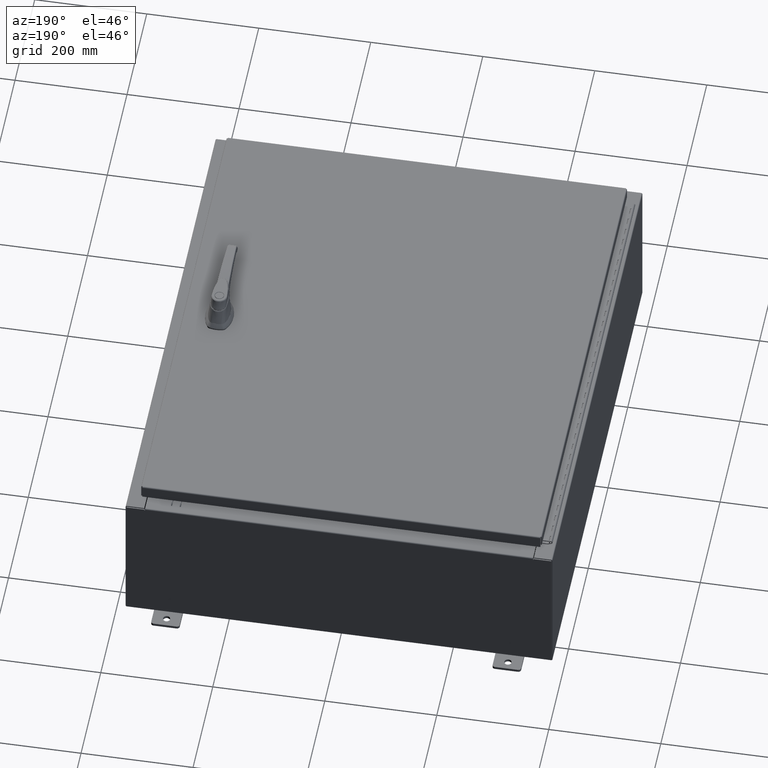
[diagram: clean part render]
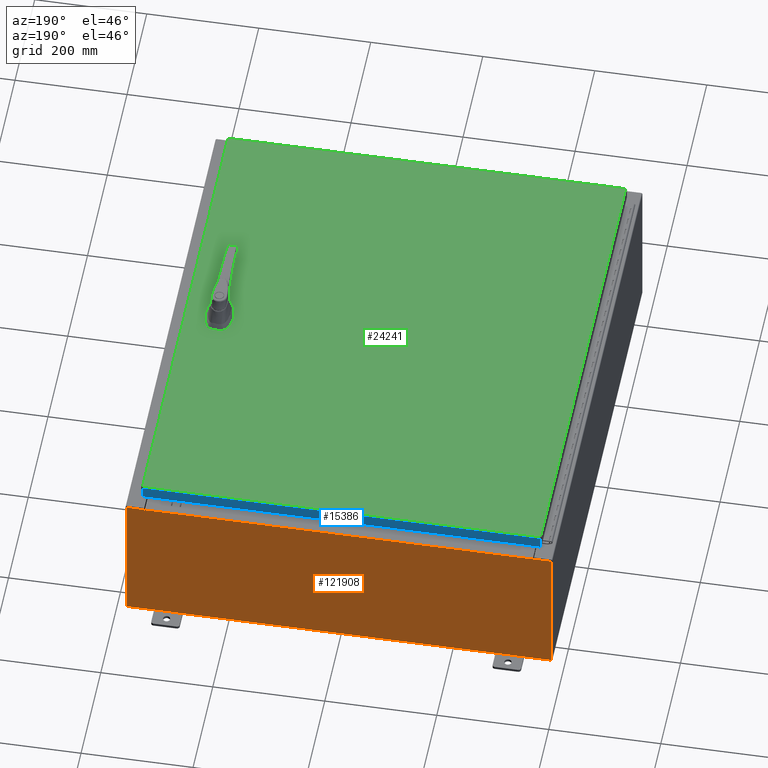
[diagram: same view with three faces highlighted in distinct colors, each labeled with its STEP entity id]
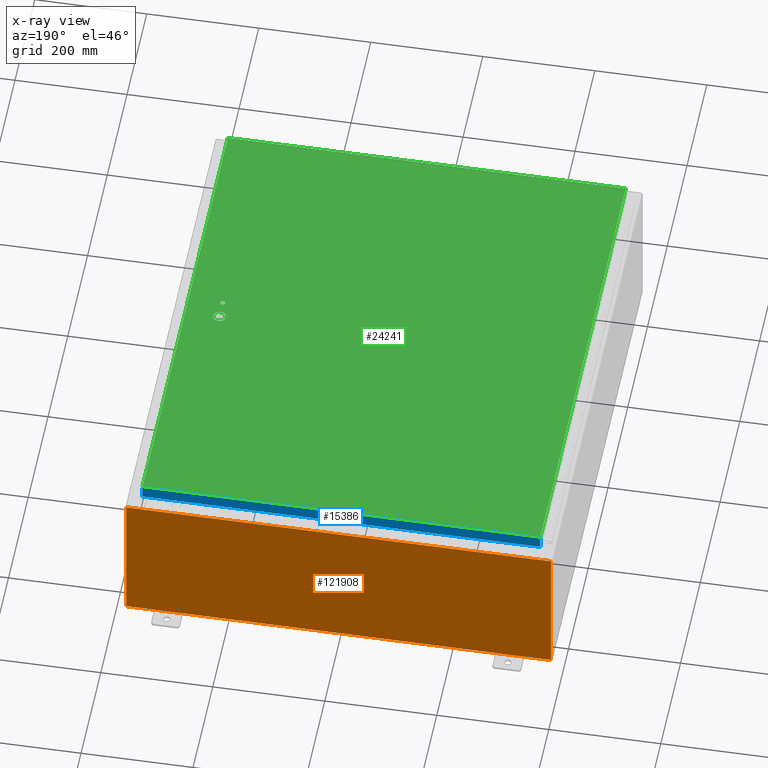
[diagram: x-ray of the same camera — body ghosted, the three highlighted faces saturated]
A machine part, auxiliary view with three faces highlighted in distinct colors.
The next image is the same camera in x-ray (body ghosted, the three faces saturated) — at least one of them is partly hidden behind the body in this view.
Their STEP definitions:

[orange] entity #121908 — the highlighted planar face has unit normal (0, -1, 0).
#145 = AXIS2_PLACEMENT_3D ( 'NONE', #75237, #18423, #84739 ) ;
#1754 = CARTESIAN_POINT ( 'NONE',  ( 13.63719999999999800, 0.0000000000000000000, 4.874950000000000100 ) ) ;
#2899 = EDGE_CURVE ( 'NONE', #12964, #7895, #5809, .T. ) ;
#3529 = CARTESIAN_POINT ( 'NONE',  ( 13.67454999999999800, 0.0000000000000000000, 4.874950000000000100 ) ) ;
#5809 = LINE ( 'NONE', #23535, #33932 ) ;
#7895 = VERTEX_POINT ( 'NONE', #102357 ) ;
#8056 = CARTESIAN_POINT ( 'NONE',  ( -13.65587500000000000, 0.0000000000000000000, 4.874950000000000100 ) ) ;
#9061 = EDGE_CURVE ( 'NONE', #52164, #45915, #66389, .T. ) ;
#12059 = CARTESIAN_POINT ( 'NONE',  ( 14.92529999999999800, 0.0000000000000000000, 4.925300000000000000 ) ) ;
#12964 = VERTEX_POINT ( 'NONE', #120983 ) ;
#17562 = DIRECTION ( 'NONE',  ( 0.0000000000000000000, 0.0000000000000000000, -1.000000000000000000 ) ) ;
#18423 = DIRECTION ( 'NONE',  ( 0.0000000000000000000, -1.000000000000000000, 0.0000000000000000000 ) ) ;
#18701 = VERTEX_POINT ( 'NONE', #3529 ) ;
#18991 = CARTESIAN_POINT ( 'NONE',  ( -14.92530000000000200, 0.0000000000000000000, 4.925300000000000000 ) ) ;
#19793 = DIRECTION ( 'NONE',  ( -1.000000000000000000, -0.0000000000000000000, -0.0000000000000000000 ) ) ;
#21705 = DIRECTION ( 'NONE',  ( -0.0000000000000000000, 1.000000000000000000, -0.0000000000000000000 ) ) ;
#23535 = CARTESIAN_POINT ( 'NONE',  ( -13.63720000000000000, -0.0000000000000000000, 0.0000000000000000000 ) ) ;
#24063 = DIRECTION ( 'NONE',  ( 0.0000000000000000000, 0.0000000000000000000, -1.000000000000000000 ) ) ;
#25064 = ORIENTED_EDGE ( 'NONE', *, *, #75148, .F. ) ;
#27351 = EDGE_CURVE ( 'NONE', #115807, #104581, #46039, .T. ) ;
#27527 = DIRECTION ( 'NONE',  ( 0.0000000000000000000, 0.0000000000000000000, -1.000000000000000000 ) ) ;
#27940 = CARTESIAN_POINT ( 'NONE',  ( 14.92529999999999800, 0.0000000000000000000, 4.925300000000000000 ) ) ;
#28255 = DIRECTION ( 'NONE',  ( 1.000000000000000000, 0.0000000000000000000, 0.0000000000000000000 ) ) ;
#28277 = ORIENTED_EDGE ( 'NONE', *, *, #82567, .F. ) ;
#30287 = CARTESIAN_POINT ( 'NONE',  ( 13.67455000000000000, 0.0000000000000000000, 4.925300000000000000 ) ) ;
#30354 = VECTOR ( 'NONE', #85294, 39.37007874015748100 ) ;
#30510 = CARTESIAN_POINT ( 'NONE',  ( 13.63719999999999800, 0.0000000000000000000, 4.912300000000000100 ) ) ;
#31662 = LINE ( 'NONE', #39932, #79113 ) ;
#33084 = VERTEX_POINT ( 'NONE', #12059 ) ;
#33932 = VECTOR ( 'NONE', #24063, 39.37007874015748100 ) ;
#34319 = LINE ( 'NONE', #43307, #56610 ) ;
#35712 = EDGE_CURVE ( 'NONE', #18701, #115807, #54965, .T. ) ;
#38281 = DIRECTION ( 'NONE',  ( -4.340572780400004900E-014, 0.0000000000000000000, -1.000000000000000000 ) ) ;
#39932 = CARTESIAN_POINT ( 'NONE',  ( -14.92530000000000200, 0.0000000000000000000, 4.925300000000000000 ) ) ;
#40687 = VECTOR ( 'NONE', #28255, 39.37007874015748100 ) ;
#43307 = CARTESIAN_POINT ( 'NONE',  ( -13.67455000000000000, -0.0000000000000000000, 0.0000000000000000000 ) ) ;
#44398 = DIRECTION ( 'NONE',  ( 0.0000000000000000000, 0.0000000000000000000, 1.000000000000000000 ) ) ;
#44777 = VERTEX_POINT ( 'NONE', #71262 ) ;
#45915 = VERTEX_POINT ( 'NONE', #52877 ) ;
#46039 = LINE ( 'NONE', #91668, #68334 ) ;
#47539 = ORIENTED_EDGE ( 'NONE', *, *, #27351, .F. ) ;
#47651 = CIRCLE ( 'NONE', #59007, 0.01867499999999949400 ) ;
#49864 = DIRECTION ( 'NONE',  ( -0.0000000000000000000, -0.0000000000000000000, 1.000000000000000000 ) ) ;
#52164 = VERTEX_POINT ( 'NONE', #53901 ) ;
#52877 = CARTESIAN_POINT ( 'NONE',  ( -14.92530000000000200, 0.0000000000000000000, -4.925300000000000000 ) ) ;
#53901 = CARTESIAN_POINT ( 'NONE',  ( 14.92529999999999800, 0.0000000000000000000, -4.925300000000000000 ) ) ;
#54241 = EDGE_CURVE ( 'NONE', #111426, #33084, #116456, .T. ) ;
#54965 = CIRCLE ( 'NONE', #61125, 0.01867499999999949400 ) ;
#56610 = VECTOR ( 'NONE', #100091, 39.37007874015748100 ) ;
#58313 = ORIENTED_EDGE ( 'NONE', *, *, #9061, .T. ) ;
#59007 = AXIS2_PLACEMENT_3D ( 'NONE', #8056, #74355, #17562 ) ;
#60347 = VECTOR ( 'NONE', #27527, 39.37007874015748100 ) ;
#61125 = AXIS2_PLACEMENT_3D ( 'NONE', #78509, #21705, #88056 ) ;
#63314 = FACE_OUTER_BOUND ( 'NONE', #87404, .T. ) ;
#66098 = LINE ( 'NONE', #99042, #113639 ) ;
#66389 = LINE ( 'NONE', #85681, #113930 ) ;
#68334 = VECTOR ( 'NONE', #44398, 39.37007874015748100 ) ;
#70575 = VECTOR ( 'NONE', #38281, 39.37007874015748100 ) ;
#71262 = CARTESIAN_POINT ( 'NONE',  ( -14.92530000000000200, 0.0000000000000000000, 4.925300000000000000 ) ) ;
#72314 = VERTEX_POINT ( 'NONE', #113881 ) ;
#74355 = DIRECTION ( 'NONE',  ( -0.0000000000000000000, 1.000000000000000000, -0.0000000000000000000 ) ) ;
#74963 = EDGE_CURVE ( 'NONE', #72314, #101968, #34319, .T. ) ;
#75148 = EDGE_CURVE ( 'NONE', #7895, #72314, #47651, .T. ) ;
#75237 = CARTESIAN_POINT ( 'NONE',  ( 0.0000000000000000000, 0.0000000000000000000, 0.0000000000000000000 ) ) ;
#78509 = CARTESIAN_POINT ( 'NONE',  ( 13.65587499999999800, 0.0000000000000000000, 4.874950000000000100 ) ) ;
#79113 = VECTOR ( 'NONE', #49864, 39.37007874015748100 ) ;
#82567 = EDGE_CURVE ( 'NONE', #111426, #18701, #95767, .T. ) ;
#83733 = EDGE_CURVE ( 'NONE', #44777, #101968, #100044, .T. ) ;
#84320 = PLANE ( 'NONE',  #145 ) ;
#84739 = DIRECTION ( 'NONE',  ( 0.0000000000000000000, -0.0000000000000000000, -1.000000000000000000 ) ) ;
#85294 = DIRECTION ( 'NONE',  ( 1.000000000000000000, 0.0000000000000000000, 0.0000000000000000000 ) ) ;
#85536 = CARTESIAN_POINT ( 'NONE',  ( 13.67454999999978500, -0.0000000000000000000, -5.935537951421795000E-013 ) ) ;
#85681 = CARTESIAN_POINT ( 'NONE',  ( -14.92530000000000200, 0.0000000000000000000, -4.925300000000000000 ) ) ;
#87404 = EDGE_LOOP ( 'NONE', ( #90428, #25064, #109664, #104412, #47539, #97866, #28277, #87831, #121111, #58313, #114656, #100769 ) ) ;
#87831 = ORIENTED_EDGE ( 'NONE', *, *, #54241, .T. ) ;
#88056 = DIRECTION ( 'NONE',  ( 0.0000000000000000000, 0.0000000000000000000, -1.000000000000000000 ) ) ;
#88555 = LINE ( 'NONE', #27940, #60347 ) ;
#90428 = ORIENTED_EDGE ( 'NONE', *, *, #74963, .F. ) ;
#91410 = CARTESIAN_POINT ( 'NONE',  ( -13.67455000000000000, 0.0000000000000000000, 4.925300000000000000 ) ) ;
#91643 = EDGE_CURVE ( 'NONE', #45915, #44777, #31662, .T. ) ;
#91668 = CARTESIAN_POINT ( 'NONE',  ( 13.63719999999999800, 0.0000000000000000000, 0.0000000000000000000 ) ) ;
#93344 = CARTESIAN_POINT ( 'NONE',  ( -14.92530000000000200, 0.0000000000000000000, 4.925300000000000000 ) ) ;
#95767 = LINE ( 'NONE', #85536, #70575 ) ;
#97866 = ORIENTED_EDGE ( 'NONE', *, *, #35712, .F. ) ;
#99042 = CARTESIAN_POINT ( 'NONE',  ( -13.63720000000000400, -7.171100983368691200E-016, 4.912300000000000100 ) ) ;
#100044 = LINE ( 'NONE', #18991, #30354 ) ;
#100091 = DIRECTION ( 'NONE',  ( 0.0000000000000000000, 0.0000000000000000000, 1.000000000000000000 ) ) ;
#100769 = ORIENTED_EDGE ( 'NONE', *, *, #83733, .T. ) ;
#101262 = EDGE_CURVE ( 'NONE', #12964, #104581, #66098, .T. ) ;
#101968 = VERTEX_POINT ( 'NONE', #91410 ) ;
#102357 = CARTESIAN_POINT ( 'NONE',  ( -13.63720000000000000, -0.0000000000000000000, 4.874950000000000100 ) ) ;
#104412 = ORIENTED_EDGE ( 'NONE', *, *, #101262, .T. ) ;
#104581 = VERTEX_POINT ( 'NONE', #30510 ) ;
#108676 = DIRECTION ( 'NONE',  ( 1.000000000000000000, 0.0000000000000000000, 0.0000000000000000000 ) ) ;
#109664 = ORIENTED_EDGE ( 'NONE', *, *, #2899, .F. ) ;
#111426 = VERTEX_POINT ( 'NONE', #30287 ) ;
#113639 = VECTOR ( 'NONE', #108676, 39.37007874015748100 ) ;
#113881 = CARTESIAN_POINT ( 'NONE',  ( -13.67455000000000000, 0.0000000000000000000, 4.874950000000000100 ) ) ;
#113930 = VECTOR ( 'NONE', #19793, 39.37007874015748100 ) ;
#114656 = ORIENTED_EDGE ( 'NONE', *, *, #91643, .T. ) ;
#115807 = VERTEX_POINT ( 'NONE', #1754 ) ;
#116456 = LINE ( 'NONE', #93344, #40687 ) ;
#120983 = CARTESIAN_POINT ( 'NONE',  ( -13.63720000000000000, -7.171100983368691200E-016, 4.912300000000000100 ) ) ;
#121111 = ORIENTED_EDGE ( 'NONE', *, *, #121926, .T. ) ;
#121908 = ADVANCED_FACE ( 'NONE', ( #63314 ), #84320, .F. ) ;
#121926 = EDGE_CURVE ( 'NONE', #33084, #52164, #88555, .T. ) ;

[blue] entity #15386 — the highlighted planar face has unit normal (0, -1, -0).
#3846 = LINE ( 'NONE', #109524, #82390 ) ;
#6329 = VECTOR ( 'NONE', #54759, 39.37007874015748100 ) ;
#6763 = VERTEX_POINT ( 'NONE', #83907 ) ;
#14025 = EDGE_CURVE ( 'NONE', #61152, #116522, #78989, .T. ) ;
#15386 = ADVANCED_FACE ( 'NONE', ( #65452 ), #62335, .F. ) ;
#19893 = ORIENTED_EDGE ( 'NONE', *, *, #61180, .F. ) ;
#24586 = DIRECTION ( 'NONE',  ( 3.194218701939437300E-031, -1.000000000000000000, -2.532419924601855800E-015 ) ) ;
#30635 = CARTESIAN_POINT ( 'NONE',  ( -14.07800000000000700, 17.09400000000000100, -0.08770000000000008300 ) ) ;
#40280 = CARTESIAN_POINT ( 'NONE',  ( 13.98915786437626500, 17.09400000000000100, -0.08770000000000226200 ) ) ;
#41484 = EDGE_CURVE ( 'NONE', #52463, #116522, #3846, .T. ) ;
#52463 = VERTEX_POINT ( 'NONE', #122833 ) ;
#54759 = DIRECTION ( 'NONE',  ( 0.0000000000000000000, 2.532419924601855800E-015, -1.000000000000000000 ) ) ;
#58951 = DIRECTION ( 'NONE',  ( -0.0000000000000000000, 2.532419924601855800E-015, -1.000000000000000000 ) ) ;
#61152 = VERTEX_POINT ( 'NONE', #40280 ) ;
#61180 = EDGE_CURVE ( 'NONE', #6763, #52463, #79663, .T. ) ;
#62279 = AXIS2_PLACEMENT_3D ( 'NONE', #81384, #24586, #90918 ) ;
#62335 = PLANE ( 'NONE',  #62279 ) ;
#65452 = FACE_OUTER_BOUND ( 'NONE', #122857, .T. ) ;
#66851 = LINE ( 'NONE', #30635, #117406 ) ;
#75983 = EDGE_CURVE ( 'NONE', #61152, #6763, #66851, .T. ) ;
#76679 = VECTOR ( 'NONE', #58951, 39.37007874015748100 ) ;
#78989 = LINE ( 'NONE', #111646, #6329 ) ;
#79663 = LINE ( 'NONE', #106679, #76679 ) ;
#81202 = CARTESIAN_POINT ( 'NONE',  ( 13.98915786437626500, 17.09400000000000500, -0.9376999999999997600 ) ) ;
#81384 = CARTESIAN_POINT ( 'NONE',  ( -5.460197449095275600E-030, 17.09400000000000100, 4.354999984715570800E-014 ) ) ;
#82390 = VECTOR ( 'NONE', #99876, 39.37007874015748100 ) ;
#83907 = CARTESIAN_POINT ( 'NONE',  ( -13.98915786437627800, 17.09400000000000100, -0.08770000000000118000 ) ) ;
#90918 = DIRECTION ( 'NONE',  ( 0.0000000000000000000, 2.532419924601855800E-015, -1.000000000000000000 ) ) ;
#96943 = DIRECTION ( 'NONE',  ( -1.000000000000000000, -5.159891749286783700E-031, 7.762034361881697200E-017 ) ) ;
#99876 = DIRECTION ( 'NONE',  ( 1.000000000000000000, -0.0000000000000000000, 1.261330583805775800E-016 ) ) ;
#103964 = ORIENTED_EDGE ( 'NONE', *, *, #41484, .F. ) ;
#106679 = CARTESIAN_POINT ( 'NONE',  ( -13.98915786437627600, 17.09400000000000100, -0.07469999999999980800 ) ) ;
#109524 = CARTESIAN_POINT ( 'NONE',  ( -14.07800000000000700, 17.09400000000000500, -0.9377000000000033100 ) ) ;
#111646 = CARTESIAN_POINT ( 'NONE',  ( 13.98915786437626400, 17.09400000000000100, 4.354999984715570800E-014 ) ) ;
#115570 = ORIENTED_EDGE ( 'NONE', *, *, #14025, .T. ) ;
#116522 = VERTEX_POINT ( 'NONE', #81202 ) ;
#117406 = VECTOR ( 'NONE', #96943, 39.37007874015748100 ) ;
#121560 = ORIENTED_EDGE ( 'NONE', *, *, #75983, .F. ) ;
#122833 = CARTESIAN_POINT ( 'NONE',  ( -13.98915786437627600, 17.09400000000000500, -0.9377000000000033100 ) ) ;
#122857 = EDGE_LOOP ( 'NONE', ( #121560, #115570, #103964, #19893 ) ) ;

[green] entity #24241 — the highlighted planar face has unit normal (0, 0, -1).
#1963 = CARTESIAN_POINT ( 'NONE',  ( 11.77822737075630300, -0.4029999999999252000, 0.0000000000000000000 ) ) ;
#2168 = FACE_BOUND ( 'NONE', #117686, .T. ) ;
#2959 = DIRECTION ( 'NONE',  ( -1.000000000000000000, 0.0000000000000000000, 0.0000000000000000000 ) ) ;
#4135 = VERTEX_POINT ( 'NONE', #106847 ) ;
#5146 = EDGE_CURVE ( 'NONE', #29245, #36335, #6983, .T. ) ;
#5564 = CARTESIAN_POINT ( 'NONE',  ( 11.98099999999992200, -0.2002273707563079800, 0.0000000000000000000 ) ) ;
#5871 = VERTEX_POINT ( 'NONE', #85409 ) ;
#6800 = CARTESIAN_POINT ( 'NONE',  ( 11.40649999999999200, -1.338000000000000100, 0.0000000000000000000 ) ) ;
#6916 = ORIENTED_EDGE ( 'NONE', *, *, #83180, .F. ) ;
#6983 = LINE ( 'NONE', #10139, #57416 ) ;
#7074 = CARTESIAN_POINT ( 'NONE',  ( 11.17500000000006600, 0.0000000000000000000, 0.0000000000000000000 ) ) ;
#7649 = CARTESIAN_POINT ( 'NONE',  ( 11.37777262924368300, -0.4029999999999252000, 0.0000000000000000000 ) ) ;
#8170 = CARTESIAN_POINT ( 'NONE',  ( 0.0000000000000000000, -0.4029999999999252000, 0.0000000000000000000 ) ) ;
#8811 = CARTESIAN_POINT ( 'NONE',  ( 11.57799999999999400, -1.338000000000000100, 0.0000000000000000000 ) ) ;
#9434 = AXIS2_PLACEMENT_3D ( 'NONE', #30749, #97063, #40296 ) ;
#9483 = ORIENTED_EDGE ( 'NONE', *, *, #70319, .T. ) ;
#10139 = CARTESIAN_POINT ( 'NONE',  ( -13.99030000000000700, -17.00630000000000000, -2.048885995248197400E-016 ) ) ;
#11304 = VERTEX_POINT ( 'NONE', #91041 ) ;
#11601 = PLANE ( 'NONE',  #96946 ) ;
#13015 = VERTEX_POINT ( 'NONE', #66150 ) ;
#14656 = VECTOR ( 'NONE', #80644, 39.37007874015748100 ) ;
#15220 = DIRECTION ( 'NONE',  ( 0.0000000000000000000, -1.000000000000000000, 0.0000000000000000000 ) ) ;
#15403 = AXIS2_PLACEMENT_3D ( 'NONE', #8811, #75127, #18322 ) ;
#15628 = EDGE_CURVE ( 'NONE', #98692, #70103, #75809, .T. ) ;
#17565 = LINE ( 'NONE', #72018, #65061 ) ;
#17680 = DIRECTION ( 'NONE',  ( 1.000000000000000000, 0.0000000000000000000, 0.0000000000000000000 ) ) ;
#18322 = DIRECTION ( 'NONE',  ( 1.000000000000000000, 0.0000000000000000000, 0.0000000000000000000 ) ) ;
#20720 = ORIENTED_EDGE ( 'NONE', *, *, #97470, .F. ) ;
#21291 = EDGE_CURVE ( 'NONE', #5871, #13015, #103205, .T. ) ;
#22138 = AXIS2_PLACEMENT_3D ( 'NONE', #27898, #94210, #37423 ) ;
#22228 = VERTEX_POINT ( 'NONE', #86619 ) ;
#22879 = DIRECTION ( 'NONE',  ( -0.0000000000000000000, 0.0000000000000000000, 1.000000000000000000 ) ) ;
#23842 = LINE ( 'NONE', #50910, #118890 ) ;
#24241 = ADVANCED_FACE ( 'NONE', ( #33269, #27305, #2168 ), #11601, .F. ) ;
#25511 = ORIENTED_EDGE ( 'NONE', *, *, #96067, .T. ) ;
#26445 = DIRECTION ( 'NONE',  ( -0.0000000000000000000, 0.0000000000000000000, 1.000000000000000000 ) ) ;
#26448 = ORIENTED_EDGE ( 'NONE', *, *, #39125, .F. ) ;
#27236 = CIRCLE ( 'NONE', #39520, 0.1715000000000011500 ) ;
#27305 = FACE_OUTER_BOUND ( 'NONE', #85363, .T. ) ;
#27536 = ORIENTED_EDGE ( 'NONE', *, *, #102780, .T. ) ;
#27898 = CARTESIAN_POINT ( 'NONE',  ( 11.57799999999999400, 0.0000000000000000000, 0.0000000000000000000 ) ) ;
#28960 = CIRCLE ( 'NONE', #53476, 0.4499999999999168000 ) ;
#29245 = VERTEX_POINT ( 'NONE', #50288 ) ;
#30505 = CARTESIAN_POINT ( 'NONE',  ( 13.99029999999999200, 17.00630000000000300, -1.297627796990525000E-015 ) ) ;
#30749 = CARTESIAN_POINT ( 'NONE',  ( 11.57799999999999400, 0.0000000000000000000, 0.0000000000000000000 ) ) ;
#32533 = EDGE_CURVE ( 'NONE', #70103, #98692, #27236, .T. ) ;
#33269 = FACE_BOUND ( 'NONE', #61957, .T. ) ;
#34667 = LINE ( 'NONE', #8170, #50988 ) ;
#34890 = CARTESIAN_POINT ( 'NONE',  ( 11.57799999999999400, 0.0000000000000000000, 0.0000000000000000000 ) ) ;
#35483 = ORIENTED_EDGE ( 'NONE', *, *, #53196, .F. ) ;
#36335 = VERTEX_POINT ( 'NONE', #110729 ) ;
#36847 = DIRECTION ( 'NONE',  ( 0.0000000000000000000, -1.000000000000000000, 0.0000000000000000000 ) ) ;
#37423 = DIRECTION ( 'NONE',  ( 1.000000000000000000, 0.0000000000000000000, 0.0000000000000000000 ) ) ;
#39125 = EDGE_CURVE ( 'NONE', #69137, #5871, #61977, .T. ) ;
#39520 = AXIS2_PLACEMENT_3D ( 'NONE', #79694, #22879, #89228 ) ;
#40296 = DIRECTION ( 'NONE',  ( 1.000000000000000000, 0.0000000000000000000, 0.0000000000000000000 ) ) ;
#42049 = ORIENTED_EDGE ( 'NONE', *, *, #5146, .T. ) ;
#42512 = CARTESIAN_POINT ( 'NONE',  ( 13.99029999999999200, 17.00630000000000300, -1.297627796990525000E-015 ) ) ;
#42687 = ORIENTED_EDGE ( 'NONE', *, *, #55232, .F. ) ;
#44441 = DIRECTION ( 'NONE',  ( 1.000000000000000000, 0.0000000000000000000, 0.0000000000000000000 ) ) ;
#45882 = AXIS2_PLACEMENT_3D ( 'NONE', #34890, #101235, #44441 ) ;
#49702 = DIRECTION ( 'NONE',  ( 0.0000000000000000000, 0.0000000000000000000, -1.000000000000000000 ) ) ;
#50159 = CARTESIAN_POINT ( 'NONE',  ( 0.0000000000000000000, 0.4029999999999252000, 0.0000000000000000000 ) ) ;
#50288 = CARTESIAN_POINT ( 'NONE',  ( -13.99030000000000700, -17.00630000000000000, -2.048885995248197400E-016 ) ) ;
#50481 = CARTESIAN_POINT ( 'NONE',  ( 11.74949999999999400, -1.338000000000000100, 0.0000000000000000000 ) ) ;
#50910 = CARTESIAN_POINT ( 'NONE',  ( 11.98099999999992000, 6.538620706741751200E-014, 0.0000000000000000000 ) ) ;
#50988 = VECTOR ( 'NONE', #17680, 39.37007874015748100 ) ;
#53196 = EDGE_CURVE ( 'NONE', #117408, #73981, #34667, .T. ) ;
#53476 = AXIS2_PLACEMENT_3D ( 'NONE', #83222, #26445, #92767 ) ;
#55232 = EDGE_CURVE ( 'NONE', #73981, #86839, #28960, .T. ) ;
#55477 = VECTOR ( 'NONE', #98432, 39.37007874015748100 ) ;
#57416 = VECTOR ( 'NONE', #66940, 39.37007874015748100 ) ;
#60474 = DIRECTION ( 'NONE',  ( 5.457491617345625800E-015, -1.000000000000000000, 0.0000000000000000000 ) ) ;
#60928 = ORIENTED_EDGE ( 'NONE', *, *, #32533, .F. ) ;
#61957 = EDGE_LOOP ( 'NONE', ( #60928, #88064 ) ) ;
#61977 = LINE ( 'NONE', #50159, #112493 ) ;
#62494 = VERTEX_POINT ( 'NONE', #30505 ) ;
#64547 = LINE ( 'NONE', #7074, #89764 ) ;
#65061 = VECTOR ( 'NONE', #15220, 39.37007874015748100 ) ;
#66150 = CARTESIAN_POINT ( 'NONE',  ( 11.17500000000006600, 0.2002273707563079800, 0.0000000000000000000 ) ) ;
#66940 = DIRECTION ( 'NONE',  ( 1.000000000000000000, -0.0000000000000000000, -0.0000000000000000000 ) ) ;
#69137 = VERTEX_POINT ( 'NONE', #117638 ) ;
#70103 = VERTEX_POINT ( 'NONE', #50481 ) ;
#70319 = EDGE_CURVE ( 'NONE', #22228, #29245, #17565, .T. ) ;
#72018 = CARTESIAN_POINT ( 'NONE',  ( -13.99030000000000700, 17.00630000000000000, -2.048885995248197400E-016 ) ) ;
#72210 = ORIENTED_EDGE ( 'NONE', *, *, #79355, .T. ) ;
#73981 = VERTEX_POINT ( 'NONE', #1963 ) ;
#75127 = DIRECTION ( 'NONE',  ( -0.0000000000000000000, 0.0000000000000000000, 1.000000000000000000 ) ) ;
#75809 = CIRCLE ( 'NONE', #15403, 0.1715000000000011500 ) ;
#79355 = EDGE_CURVE ( 'NONE', #62494, #22228, #112635, .T. ) ;
#79694 = CARTESIAN_POINT ( 'NONE',  ( 11.57799999999999400, -1.338000000000000100, 0.0000000000000000000 ) ) ;
#80644 = DIRECTION ( 'NONE',  ( -1.000000000000000000, -0.0000000000000000000, -0.0000000000000000000 ) ) ;
#83180 = EDGE_CURVE ( 'NONE', #11304, #117408, #110613, .T. ) ;
#83222 = CARTESIAN_POINT ( 'NONE',  ( 11.57799999999999400, 0.0000000000000000000, 0.0000000000000000000 ) ) ;
#85363 = EDGE_LOOP ( 'NONE', ( #42049, #27536, #72210, #9483 ) ) ;
#85409 = CARTESIAN_POINT ( 'NONE',  ( 11.37777262924368300, 0.4029999999999252000, 0.0000000000000000000 ) ) ;
#86619 = CARTESIAN_POINT ( 'NONE',  ( -13.99030000000000700, 17.00630000000000000, -2.048885995248197400E-016 ) ) ;
#86839 = VERTEX_POINT ( 'NONE', #5564 ) ;
#87438 = CARTESIAN_POINT ( 'NONE',  ( 0.0000000000000000000, 0.0000000000000000000, 0.0000000000000000000 ) ) ;
#88064 = ORIENTED_EDGE ( 'NONE', *, *, #15628, .F. ) ;
#89228 = DIRECTION ( 'NONE',  ( 1.000000000000000000, 0.0000000000000000000, 0.0000000000000000000 ) ) ;
#89764 = VECTOR ( 'NONE', #36847, 39.37007874015748100 ) ;
#91041 = CARTESIAN_POINT ( 'NONE',  ( 11.17500000000006600, -0.2002273707563079800, 0.0000000000000000000 ) ) ;
#92767 = DIRECTION ( 'NONE',  ( 1.000000000000000000, 0.0000000000000000000, 0.0000000000000000000 ) ) ;
#94210 = DIRECTION ( 'NONE',  ( -0.0000000000000000000, 0.0000000000000000000, 1.000000000000000000 ) ) ;
#96067 = EDGE_CURVE ( 'NONE', #4135, #86839, #23842, .T. ) ;
#96946 = AXIS2_PLACEMENT_3D ( 'NONE', #87438, #49702, #116162 ) ;
#97063 = DIRECTION ( 'NONE',  ( -0.0000000000000000000, 0.0000000000000000000, 1.000000000000000000 ) ) ;
#97470 = EDGE_CURVE ( 'NONE', #4135, #69137, #121594, .T. ) ;
#98432 = DIRECTION ( 'NONE',  ( 0.0000000000000000000, 1.000000000000000000, 0.0000000000000000000 ) ) ;
#98692 = VERTEX_POINT ( 'NONE', #6800 ) ;
#101235 = DIRECTION ( 'NONE',  ( -0.0000000000000000000, 0.0000000000000000000, 1.000000000000000000 ) ) ;
#102780 = EDGE_CURVE ( 'NONE', #36335, #62494, #102949, .T. ) ;
#102949 = LINE ( 'NONE', #117645, #55477 ) ;
#103205 = CIRCLE ( 'NONE', #22138, 0.4499999999999168000 ) ;
#106815 = ORIENTED_EDGE ( 'NONE', *, *, #21291, .F. ) ;
#106847 = CARTESIAN_POINT ( 'NONE',  ( 11.98099999999992000, 0.2002273707563075900, 0.0000000000000000000 ) ) ;
#110613 = CIRCLE ( 'NONE', #45882, 0.4499999999999168000 ) ;
#110729 = CARTESIAN_POINT ( 'NONE',  ( 13.99029999999999200, -17.00630000000000000, -2.048885995248197400E-016 ) ) ;
#112493 = VECTOR ( 'NONE', #2959, 39.37007874015748100 ) ;
#112635 = LINE ( 'NONE', #42512, #14656 ) ;
#116162 = DIRECTION ( 'NONE',  ( -1.000000000000000000, 0.0000000000000000000, -0.0000000000000000000 ) ) ;
#117408 = VERTEX_POINT ( 'NONE', #7649 ) ;
#117638 = CARTESIAN_POINT ( 'NONE',  ( 11.77822737075630300, 0.4029999999999252000, 0.0000000000000000000 ) ) ;
#117645 = CARTESIAN_POINT ( 'NONE',  ( 13.99029999999999200, -17.00630000000000000, -2.048885995248197400E-016 ) ) ;
#117686 = EDGE_LOOP ( 'NONE', ( #25511, #42687, #35483, #6916, #120282, #106815, #26448, #20720 ) ) ;
#118890 = VECTOR ( 'NONE', #60474, 39.37007874015748100 ) ;
#119466 = EDGE_CURVE ( 'NONE', #13015, #11304, #64547, .T. ) ;
#120282 = ORIENTED_EDGE ( 'NONE', *, *, #119466, .F. ) ;
#121594 = CIRCLE ( 'NONE', #9434, 0.4499999999999168000 ) ;